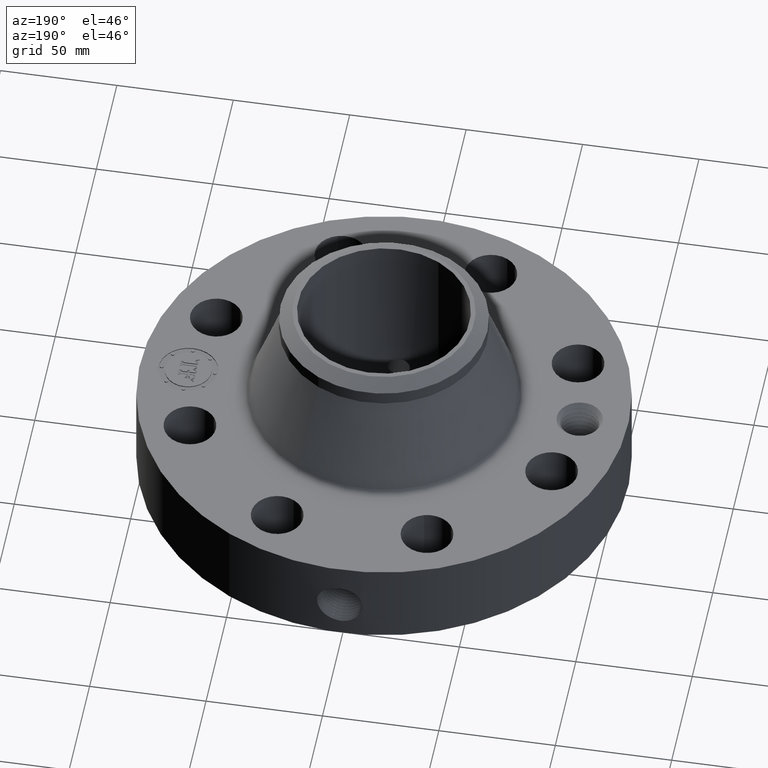
[diagram: clean part render]
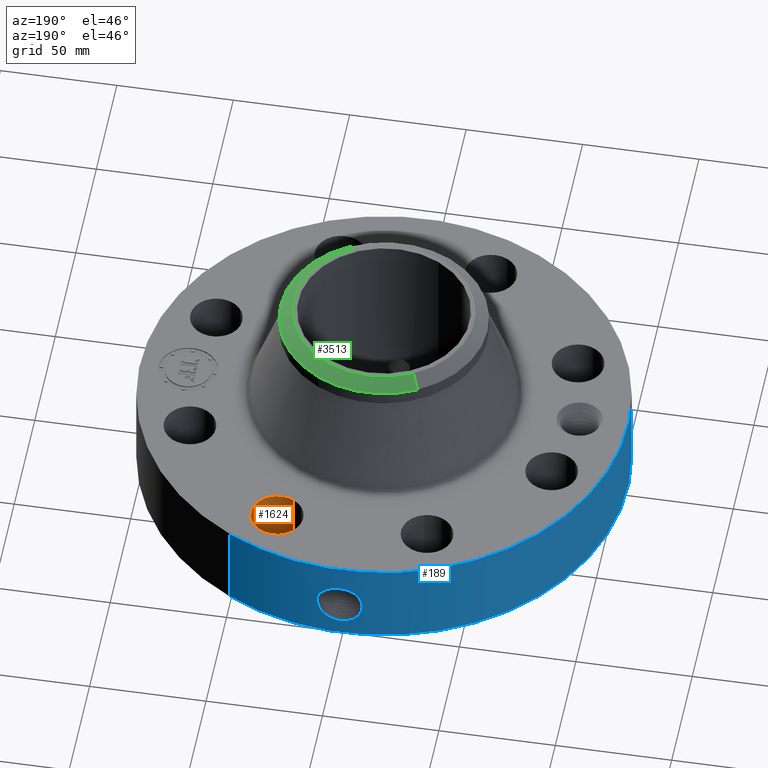
[diagram: same view with three faces highlighted in distinct colors, each labeled with its STEP entity id]
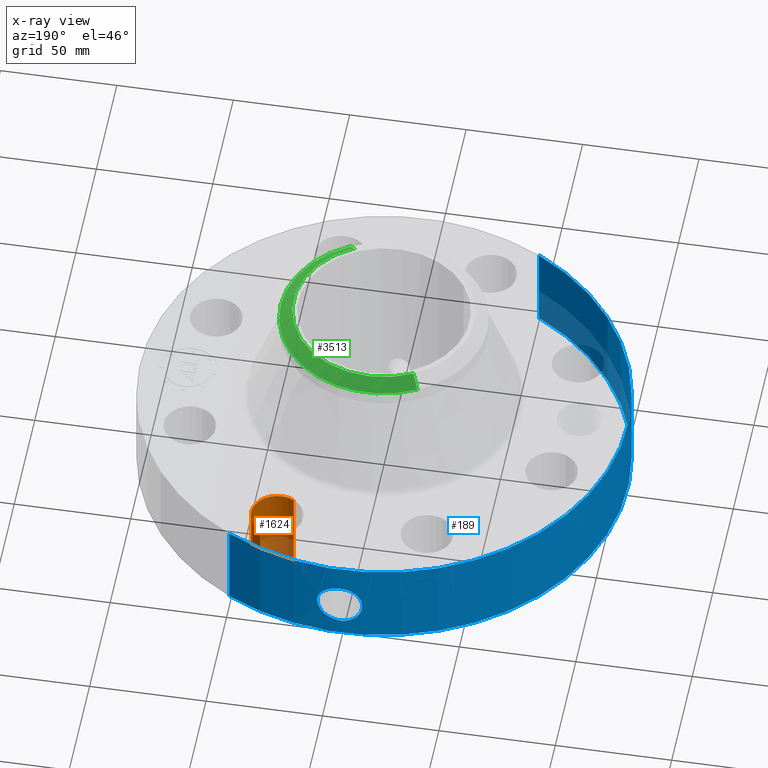
[diagram: x-ray of the same camera — body ghosted, the three highlighted faces saturated]
A machine part, auxiliary view with three faces highlighted in distinct colors.
The next image is the same camera in x-ray (body ghosted, the three faces saturated) — at least one of them is partly hidden behind the body in this view.
Their STEP definitions:

[orange] entity #1624 — the highlighted cylindrical surface (edge-blend (fillet) strip) has radius 11.176 mm, axis along (0, 0, -1).
#359=AXIS2_PLACEMENT_3D('Circle Axis2P3D',#357,#358,$) ;
#667=AXIS2_PLACEMENT_3D('Circle Axis2P3D',#665,#666,$) ;
#1599=AXIS2_PLACEMENT_3D('Cylinder Axis2P3D',#1596,#1597,#1598) ;
#352=CARTESIAN_POINT('Vertex',(1.05573492415,2.67190492539,0.250000000001)) ;
#354=CARTESIAN_POINT('Vertex',(1.47762939812,3.44417757986,0.250000000001)) ;
#357=CARTESIAN_POINT('Axis2P3D Location',(1.26668216113,3.05804125262,0.250000000001)) ;
#665=CARTESIAN_POINT('Axis2P3D Location',(1.26668216113,3.05804125262,1.75000000001)) ;
#669=CARTESIAN_POINT('Vertex',(1.47762939812,3.44417757986,1.75000000001)) ;
#671=CARTESIAN_POINT('Vertex',(1.05573492415,2.67190492539,1.75000000001)) ;
#1596=CARTESIAN_POINT('Axis2P3D Location',(1.26668216113,3.05804125262,1.74606299213)) ;
#1601=CARTESIAN_POINT('Line Origine',(1.05573492415,2.67190492539,1.)) ;
#1606=CARTESIAN_POINT('Line Origine',(1.47762939812,3.44417757986,1.)) ;
#358=DIRECTION('Axis2P3D Direction',(0.,0.,-0.0393700787402)) ;
#666=DIRECTION('Axis2P3D Direction',(0.,0.,-0.0393700787402)) ;
#1597=DIRECTION('Axis2P3D Direction',(0.,0.,-0.0393700787402)) ;
#1598=DIRECTION('Axis2P3D XDirection',(0.0188750212049,0.0345504945626,0.)) ;
#1602=DIRECTION('Vector Direction',(0.,0.,-0.0393700787402)) ;
#1607=DIRECTION('Vector Direction',(0.,0.,-0.0393700787402)) ;
#1603=VECTOR('Line Direction',#1602,0.0393700787402) ;
#1608=VECTOR('Line Direction',#1607,0.0393700787402) ;
#1619=ORIENTED_EDGE('',*,*,#1610,.F.) ;
#1620=ORIENTED_EDGE('',*,*,#361,.T.) ;
#1621=ORIENTED_EDGE('',*,*,#1605,.T.) ;
#1622=ORIENTED_EDGE('',*,*,#673,.F.) ;
#1624=ADVANCED_FACE('PartBody',(#1623),#1600,.F.) ;
#360=CIRCLE('generated circle',#359,0.440000000002) ;
#668=CIRCLE('generated circle',#667,0.440000000002) ;
#1600=CYLINDRICAL_SURFACE('generated cylinder',#1599,0.440000000002) ;
#361=EDGE_CURVE('',#355,#353,#360,.T.) ;
#673=EDGE_CURVE('',#670,#672,#668,.T.) ;
#1605=EDGE_CURVE('',#353,#672,#1604,.F.) ;
#1610=EDGE_CURVE('',#355,#670,#1609,.F.) ;
#1618=EDGE_LOOP('',(#1619,#1620,#1621,#1622)) ;
#1623=FACE_OUTER_BOUND('',#1618,.T.) ;
#1604=LINE('Line',#1601,#1603) ;
#1609=LINE('Line',#1606,#1608) ;
#353=VERTEX_POINT('',#352) ;
#355=VERTEX_POINT('',#354) ;
#670=VERTEX_POINT('',#669) ;
#672=VERTEX_POINT('',#671) ;

[blue] entity #189 — the highlighted cylindrical surface (partial cylindrical patch) has radius 104.775 mm, axis along (0, 0, -1).
#38=AXIS2_PLACEMENT_3D('Cylinder Axis2P3D',#35,#36,#37) ;
#42=AXIS2_PLACEMENT_3D('Circle Axis2P3D',#40,#41,$) ;
#58=AXIS2_PLACEMENT_3D('Circle Axis2P3D',#56,#57,$) ;
#35=CARTESIAN_POINT('Axis2P3D Location',(0.,0.,2.00000000001)) ;
#40=CARTESIAN_POINT('Axis2P3D Location',(0.,0.,0.250000000001)) ;
#44=CARTESIAN_POINT('Vertex',(-1.97763034675,-3.62002806781,0.250000000001)) ;
#46=CARTESIAN_POINT('Vertex',(1.97763034675,3.62002806781,0.250000000001)) ;
#49=CARTESIAN_POINT('Line Origine',(-1.97763034675,-3.62002806781,1.)) ;
#53=CARTESIAN_POINT('Vertex',(-1.97763034675,-3.62002806781,1.75000000001)) ;
#56=CARTESIAN_POINT('Axis2P3D Location',(0.,0.,1.75000000001)) ;
#60=CARTESIAN_POINT('Vertex',(1.97763034675,3.62002806781,1.75000000001)) ;
#63=CARTESIAN_POINT('Line Origine',(1.97763034675,3.62002806781,1.)) ;
#75=CARTESIAN_POINT('Control Point',(-0.0708258696652,4.12439191837,1.28694445408)) ;
#76=CARTESIAN_POINT('Control Point',(-0.0477756042706,4.12478774765,1.29166264764)) ;
#77=CARTESIAN_POINT('Control Point',(-0.0242493397507,4.12499584526,1.29407066085)) ;
#78=CARTESIAN_POINT('Control Point',(-0.000717367785645,4.12499993764,1.29411849621)) ;
#79=CARTESIAN_POINT('Vertex',(-0.0707931255285,4.12439274845,1.28695147494)) ;
#81=CARTESIAN_POINT('Vertex',(-0.000717115675858,4.12499993768,1.29411850626)) ;
#85=CARTESIAN_POINT('Control Point',(-0.0707929875436,4.12439248291,1.28695080973)) ;
#86=CARTESIAN_POINT('Control Point',(-0.105534403897,4.12379616511,1.28076532583)) ;
#87=CARTESIAN_POINT('Control Point',(-0.139240729959,4.12276500955,1.26858978299)) ;
#88=CARTESIAN_POINT('Control Point',(-0.170106274733,4.12149109612,1.25141106894)) ;
#89=CARTESIAN_POINT('Vertex',(-0.170106274733,4.12149109612,1.25141106894)) ;
#93=CARTESIAN_POINT('Control Point',(-0.170106274733,4.12149109612,1.25141106894)) ;
#94=CARTESIAN_POINT('Control Point',(-0.189944744256,4.1206723031,1.24036965022)) ;
#95=CARTESIAN_POINT('Control Point',(-0.208623588127,4.11975702947,1.22728178951)) ;
#96=CARTESIAN_POINT('Control Point',(-0.225825151081,4.11881390709,1.21251850282)) ;
#97=CARTESIAN_POINT('Vertex',(-0.225825362099,4.11881409519,1.21251874593)) ;
#101=CARTESIAN_POINT('Control Point',(-0.351866700326,4.10996530707,0.975464361167)) ;
#102=CARTESIAN_POINT('Control Point',(-0.3449788673,4.11055499552,1.04398627868)) ;
#103=CARTESIAN_POINT('Control Point',(-0.320314482858,4.11268399222,1.1107740783)) ;
#104=CARTESIAN_POINT('Control Point',(-0.278761447421,4.1159117292,1.16853984638)) ;
#105=CARTESIAN_POINT('Control Point',(-0.225809776377,4.11881475003,1.21253161272)) ;
#106=CARTESIAN_POINT('Vertex',(-0.351866537775,4.10996536585,0.975466055539)) ;
#110=CARTESIAN_POINT('Control Point',(-0.0285867200519,4.12490094421,0.531014415425)) ;
#111=CARTESIAN_POINT('Control Point',(-0.0731508323957,4.12459210242,0.53676262059)) ;
#112=CARTESIAN_POINT('Control Point',(-0.116605911804,4.12368909709,0.549610401929)) ;
#113=CARTESIAN_POINT('Control Point',(-0.157313656185,4.12226228881,0.569187265495)) ;
#114=CARTESIAN_POINT('Control Point',(-0.21841203315,4.11943105988,0.610865799681)) ;
#115=CARTESIAN_POINT('Control Point',(-0.267085984175,4.11640755897,0.664664117653)) ;
#116=CARTESIAN_POINT('Control Point',(-0.284316422769,4.11523449191,0.687667885473)) ;
#117=CARTESIAN_POINT('Control Point',(-0.325710071676,4.11223072828,0.754664964787)) ;
#118=CARTESIAN_POINT('Control Point',(-0.349728178375,4.11016858959,0.829194136454)) ;
#119=CARTESIAN_POINT('Control Point',(-0.357709929823,4.10945203007,0.878220924892)) ;
#120=CARTESIAN_POINT('Control Point',(-0.358385651065,4.10940720015,0.927417505232)) ;
#121=CARTESIAN_POINT('Control Point',(-0.351866458174,4.1099653278,0.975466036918)) ;
#122=CARTESIAN_POINT('Vertex',(-0.0285867200519,4.12490094421,0.531014415425)) ;
#126=CARTESIAN_POINT('Control Point',(-0.0285867200519,4.12490094421,0.531014415425)) ;
#127=CARTESIAN_POINT('Control Point',(-0.0190504033792,4.12496703356,0.530850653595)) ;
#128=CARTESIAN_POINT('Control Point',(-0.00951371795879,4.12500000631,0.530970811253)) ;
#129=CARTESIAN_POINT('Control Point',(2.72878353804E-006,4.12500000002,0.531374667805)) ;
#130=CARTESIAN_POINT('Vertex',(2.72878353841E-006,4.12500000002,0.531374667805)) ;
#134=CARTESIAN_POINT('Control Point',(0.195057006855,4.12038563295,0.582957545943)) ;
#135=CARTESIAN_POINT('Control Point',(0.134929810897,4.12323202451,0.551663787968)) ;
#136=CARTESIAN_POINT('Control Point',(0.0678695334279,4.12499995512,0.534254782757)) ;
#137=CARTESIAN_POINT('Control Point',(2.72878353806E-006,4.12500000002,0.531374667805)) ;
#138=CARTESIAN_POINT('Vertex',(0.195057006855,4.12038563295,0.582957545943)) ;
#142=CARTESIAN_POINT('Control Point',(0.277741653318,4.11563902379,0.638820641839)) ;
#143=CARTESIAN_POINT('Control Point',(0.252440207961,4.11734647802,0.617037280358)) ;
#144=CARTESIAN_POINT('Control Point',(0.224590631534,4.11898752584,0.598328594931)) ;
#145=CARTESIAN_POINT('Control Point',(0.195057006855,4.12038563295,0.582957545943)) ;
#146=CARTESIAN_POINT('Vertex',(0.277741653318,4.11563902379,0.638820641839)) ;
#150=CARTESIAN_POINT('Control Point',(0.277741653318,4.11563902379,0.638820641839)) ;
#151=CARTESIAN_POINT('Control Point',(0.346084614532,4.11102693635,0.706500366911)) ;
#152=CARTESIAN_POINT('Control Point',(0.39250322872,4.1063284801,0.795167285679)) ;
#153=CARTESIAN_POINT('Control Point',(0.412343746852,4.10434301328,0.89184725188)) ;
#154=CARTESIAN_POINT('Control Point',(0.406546637881,4.1049171528,0.98790255717)) ;
#155=CARTESIAN_POINT('Vertex',(0.406546637881,4.1049171528,0.98790255717)) ;
#159=CARTESIAN_POINT('Control Point',(0.406546637881,4.1049171528,0.98790255717)) ;
#160=CARTESIAN_POINT('Control Point',(0.396696308028,4.10589271902,1.03992594034)) ;
#161=CARTESIAN_POINT('Control Point',(0.377107791081,4.10780290855,1.08979808975)) ;
#162=CARTESIAN_POINT('Control Point',(0.348680840764,4.11043683845,1.13488020744)) ;
#163=CARTESIAN_POINT('Control Point',(0.272595100954,4.11655133167,1.21936561237)) ;
#164=CARTESIAN_POINT('Control Point',(0.173676685764,4.1218983007,1.27163748858)) ;
#165=CARTESIAN_POINT('Control Point',(0.116496598123,4.12398624661,1.28950778802)) ;
#166=CARTESIAN_POINT('Control Point',(0.057834287168,4.12500036264,1.29698939342)) ;
#167=CARTESIAN_POINT('Control Point',(-2.58579355212E-005,4.12499999994,1.29415298439)) ;
#168=CARTESIAN_POINT('Vertex',(-2.585793551E-005,4.12499999994,1.29415298439)) ;
#172=CARTESIAN_POINT('Control Point',(-0.00071711566355,4.12499993768,1.29411850625)) ;
#173=CARTESIAN_POINT('Control Point',(-0.000371509656304,4.12499999777,1.29413603992)) ;
#174=CARTESIAN_POINT('Control Point',(-2.58579439155E-005,4.12499999994,1.29415298439)) ;
#36=DIRECTION('Axis2P3D Direction',(0.,0.,-0.0393700787402)) ;
#37=DIRECTION('Axis2P3D XDirection',(0.0188750212049,0.0345504945626,0.)) ;
#41=DIRECTION('Axis2P3D Direction',(0.,0.,-0.0393700787402)) ;
#50=DIRECTION('Vector Direction',(0.,0.,-0.0393700787402)) ;
#57=DIRECTION('Axis2P3D Direction',(0.,0.,-0.0393700787402)) ;
#64=DIRECTION('Vector Direction',(0.,0.,-0.0393700787402)) ;
#51=VECTOR('Line Direction',#50,0.0393700787402) ;
#65=VECTOR('Line Direction',#64,0.0393700787402) ;
#69=ORIENTED_EDGE('',*,*,#48,.F.) ;
#70=ORIENTED_EDGE('',*,*,#55,.T.) ;
#71=ORIENTED_EDGE('',*,*,#62,.T.) ;
#72=ORIENTED_EDGE('',*,*,#67,.F.) ;
#177=ORIENTED_EDGE('',*,*,#83,.F.) ;
#178=ORIENTED_EDGE('',*,*,#91,.T.) ;
#179=ORIENTED_EDGE('',*,*,#99,.T.) ;
#180=ORIENTED_EDGE('',*,*,#108,.F.) ;
#181=ORIENTED_EDGE('',*,*,#124,.F.) ;
#182=ORIENTED_EDGE('',*,*,#132,.T.) ;
#183=ORIENTED_EDGE('',*,*,#140,.F.) ;
#184=ORIENTED_EDGE('',*,*,#148,.F.) ;
#185=ORIENTED_EDGE('',*,*,#157,.T.) ;
#186=ORIENTED_EDGE('',*,*,#170,.T.) ;
#187=ORIENTED_EDGE('',*,*,#175,.F.) ;
#188=FACE_BOUND('',#176,.T.) ;
#189=ADVANCED_FACE('PartBody',(#73,#188),#39,.T.) ;
#74=B_SPLINE_CURVE_WITH_KNOTS('',3,(#75,#76,#77,#78),.UNSPECIFIED.,.F.,.U.,(4,4),(3.91174753709,6.52241187162),.UNSPECIFIED.) ;
#84=B_SPLINE_CURVE_WITH_KNOTS('',3,(#85,#86,#87,#88),.UNSPECIFIED.,.F.,.U.,(4,4),(0.,3.96493926537),.UNSPECIFIED.) ;
#92=B_SPLINE_CURVE_WITH_KNOTS('',3,(#93,#94,#95,#96),.UNSPECIFIED.,.F.,.U.,(4,4),(0.,2.54841856433),.UNSPECIFIED.) ;
#100=B_SPLINE_CURVE_WITH_KNOTS('',4,(#101,#102,#103,#104,#105),.UNSPECIFIED.,.F.,.U.,(5,5),(14.8279676845,25.0223849688),.UNSPECIFIED.) ;
#109=B_SPLINE_CURVE_WITH_KNOTS('',5,(#110,#111,#112,#113,#114,#115,#116,#117,#118,#119,#120,#121),.UNSPECIFIED.,.F.,.U.,(6,3,3,6),(0.,7.8098590667,12.9724794095,22.0575185818),.UNSPECIFIED.) ;
#125=B_SPLINE_CURVE_WITH_KNOTS('',3,(#126,#127,#128,#129),.UNSPECIFIED.,.F.,.U.,(4,4),(0.,0.994579949519),.UNSPECIFIED.) ;
#133=B_SPLINE_CURVE_WITH_KNOTS('',3,(#134,#135,#136,#137),.UNSPECIFIED.,.F.,.U.,(4,4),(0.,7.09287457907),.UNSPECIFIED.) ;
#141=B_SPLINE_CURVE_WITH_KNOTS('',3,(#142,#143,#144,#145),.UNSPECIFIED.,.F.,.U.,(4,4),(0.,3.48391923062),.UNSPECIFIED.) ;
#149=B_SPLINE_CURVE_WITH_KNOTS('',4,(#150,#151,#152,#153,#154),.UNSPECIFIED.,.F.,.U.,(5,5),(0.,13.3803771464),.UNSPECIFIED.) ;
#158=B_SPLINE_CURVE_WITH_KNOTS('',5,(#159,#160,#161,#162,#163,#164,#165,#166,#167),.UNSPECIFIED.,.F.,.U.,(6,3,6),(0.,9.20582229468,20.0210803165),.UNSPECIFIED.) ;
#171=B_SPLINE_CURVE_WITH_KNOTS('',2,(#172,#173,#174),.UNSPECIFIED.,.F.,.U.,(3,3),(1.12444292039,1.15028670438),.UNSPECIFIED.) ;
#43=CIRCLE('generated circle',#42,4.12500000002) ;
#59=CIRCLE('generated circle',#58,4.12500000002) ;
#39=CYLINDRICAL_SURFACE('generated cylinder',#38,4.12500000002) ;
#48=EDGE_CURVE('',#45,#47,#43,.T.) ;
#55=EDGE_CURVE('',#45,#54,#52,.F.) ;
#62=EDGE_CURVE('',#54,#61,#59,.T.) ;
#67=EDGE_CURVE('',#47,#61,#66,.F.) ;
#83=EDGE_CURVE('',#80,#82,#74,.T.) ;
#91=EDGE_CURVE('',#80,#90,#84,.T.) ;
#99=EDGE_CURVE('',#90,#98,#92,.T.) ;
#108=EDGE_CURVE('',#107,#98,#100,.T.) ;
#124=EDGE_CURVE('',#123,#107,#109,.T.) ;
#132=EDGE_CURVE('',#123,#131,#125,.T.) ;
#140=EDGE_CURVE('',#139,#131,#133,.T.) ;
#148=EDGE_CURVE('',#147,#139,#141,.T.) ;
#157=EDGE_CURVE('',#147,#156,#149,.T.) ;
#170=EDGE_CURVE('',#156,#169,#158,.T.) ;
#175=EDGE_CURVE('',#82,#169,#171,.T.) ;
#68=EDGE_LOOP('',(#69,#70,#71,#72)) ;
#176=EDGE_LOOP('',(#177,#178,#179,#180,#181,#182,#183,#184,#185,#186,#187)) ;
#73=FACE_OUTER_BOUND('',#68,.T.) ;
#52=LINE('Line',#49,#51) ;
#66=LINE('Line',#63,#65) ;
#45=VERTEX_POINT('',#44) ;
#47=VERTEX_POINT('',#46) ;
#54=VERTEX_POINT('',#53) ;
#61=VERTEX_POINT('',#60) ;
#80=VERTEX_POINT('',#79) ;
#82=VERTEX_POINT('',#81) ;
#90=VERTEX_POINT('',#89) ;
#98=VERTEX_POINT('',#97) ;
#107=VERTEX_POINT('',#106) ;
#123=VERTEX_POINT('',#122) ;
#131=VERTEX_POINT('',#130) ;
#139=VERTEX_POINT('',#138) ;
#147=VERTEX_POINT('',#146) ;
#156=VERTEX_POINT('',#155) ;
#169=VERTEX_POINT('',#168) ;

[green] entity #3513 — the highlighted conical surface has half-angle 52.5 deg.
#2565=AXIS2_PLACEMENT_3D('Circle Axis2P3D',#2563,#2564,$) ;
#3458=AXIS2_PLACEMENT_3D('Cone Axis2P3D',#3455,#3456,#3457) ;
#3496=AXIS2_PLACEMENT_3D('Circle Axis2P3D',#3494,#3495,$) ;
#3503=AXIS2_PLACEMENT_3D('Circle Axis2P3D',#3501,#3502,$) ;
#2563=CARTESIAN_POINT('Axis2P3D Location',(0.,0.,3.75000000002)) ;
#2567=CARTESIAN_POINT('Vertex',(0.732917073389,-1.34159570387,3.75000000002)) ;
#2569=CARTESIAN_POINT('Vertex',(-0.732917073389,1.34159570387,3.75000000002)) ;
#3455=CARTESIAN_POINT('Axis2P3D Location',(0.,0.,3.75000000002)) ;
#3460=CARTESIAN_POINT('Line Origine',(0.785955882975,-1.43868259359,3.66511067575)) ;
#3464=CARTESIAN_POINT('Vertex',(0.838994692561,-1.53576948331,3.58022135149)) ;
#3467=CARTESIAN_POINT('Line Origine',(-0.785955882975,1.43868259359,3.66511067575)) ;
#3471=CARTESIAN_POINT('Vertex',(-0.838994692561,1.53576948331,3.58022135149)) ;
#3494=CARTESIAN_POINT('Axis2P3D Location',(0.,0.,3.58022135149)) ;
#3498=CARTESIAN_POINT('Vertex',(0.838994692561,1.53576948331,3.58022135149)) ;
#3501=CARTESIAN_POINT('Axis2P3D Location',(0.,0.,3.58022135149)) ;
#2564=DIRECTION('Axis2P3D Direction',(0.,0.,-0.0393700787402)) ;
#3456=DIRECTION('Axis2P3D Direction',(-0.,-0.,-0.0393700787402)) ;
#3457=DIRECTION('Axis2P3D XDirection',(-0.0188750212049,0.0345504945626,0.)) ;
#3461=DIRECTION('Vector Direction',(0.014974561121,-0.02741075027,-0.023966985394)) ;
#3468=DIRECTION('Vector Direction',(-0.014974561121,0.02741075027,-0.023966985394)) ;
#3495=DIRECTION('Axis2P3D Direction',(0.,0.,-0.0393700787402)) ;
#3502=DIRECTION('Axis2P3D Direction',(0.,0.,-0.0393700787402)) ;
#3462=VECTOR('Line Direction',#3461,0.0393700787402) ;
#3469=VECTOR('Line Direction',#3468,0.0393700787402) ;
#3507=ORIENTED_EDGE('',*,*,#3473,.F.) ;
#3508=ORIENTED_EDGE('',*,*,#2571,.F.) ;
#3509=ORIENTED_EDGE('',*,*,#3466,.T.) ;
#3510=ORIENTED_EDGE('',*,*,#3500,.T.) ;
#3511=ORIENTED_EDGE('',*,*,#3505,.F.) ;
#3513=ADVANCED_FACE('PartBody',(#3512),#3459,.T.) ;
#2566=CIRCLE('generated circle',#2565,1.52874015749) ;
#3497=CIRCLE('generated circle',#3496,1.75000000001) ;
#3504=CIRCLE('generated circle',#3503,1.75000000001) ;
#3459=CONICAL_SURFACE('Cone',#3458,1.52874015749,0.916297857297) ;
#2571=EDGE_CURVE('',#2568,#2570,#2566,.F.) ;
#3466=EDGE_CURVE('',#2568,#3465,#3463,.T.) ;
#3473=EDGE_CURVE('',#2570,#3472,#3470,.T.) ;
#3500=EDGE_CURVE('',#3465,#3499,#3497,.F.) ;
#3505=EDGE_CURVE('',#3472,#3499,#3504,.T.) ;
#3506=EDGE_LOOP('',(#3507,#3508,#3509,#3510,#3511)) ;
#3512=FACE_OUTER_BOUND('',#3506,.T.) ;
#3463=LINE('Line',#3460,#3462) ;
#3470=LINE('Line',#3467,#3469) ;
#2568=VERTEX_POINT('',#2567) ;
#2570=VERTEX_POINT('',#2569) ;
#3465=VERTEX_POINT('',#3464) ;
#3472=VERTEX_POINT('',#3471) ;
#3499=VERTEX_POINT('',#3498) ;